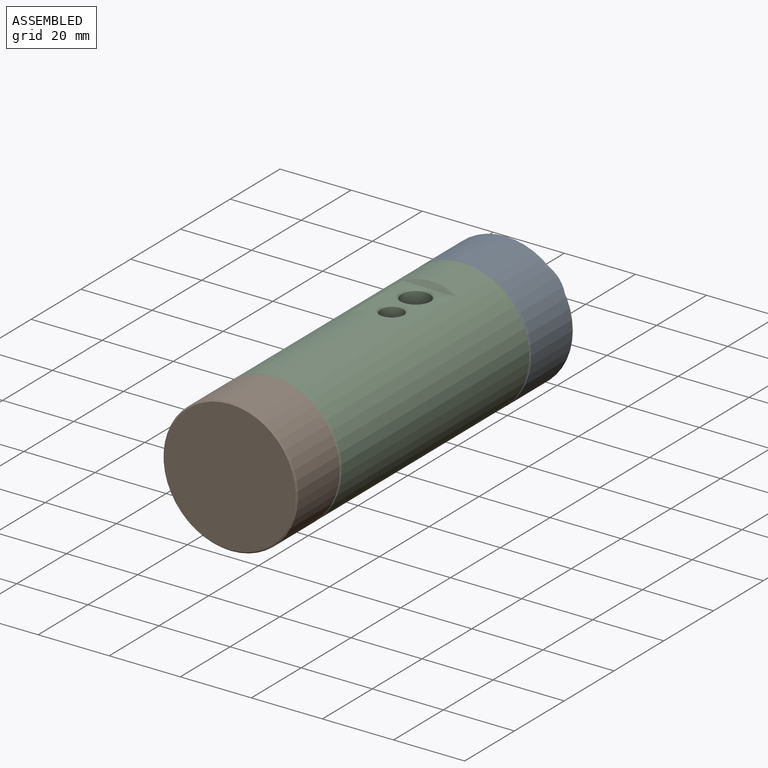
[diagram: assembled view]
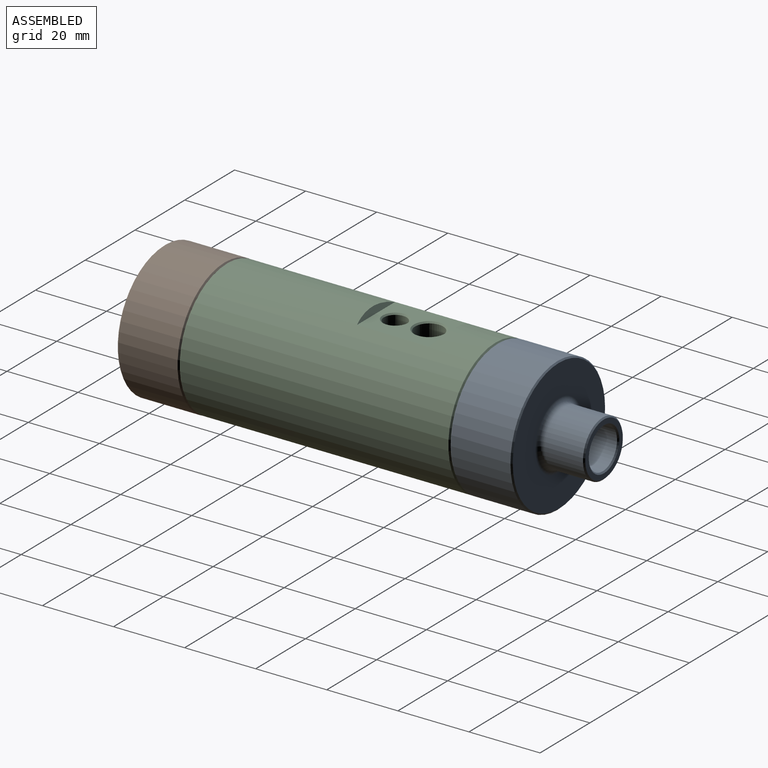
[diagram: assembled view, second angle]
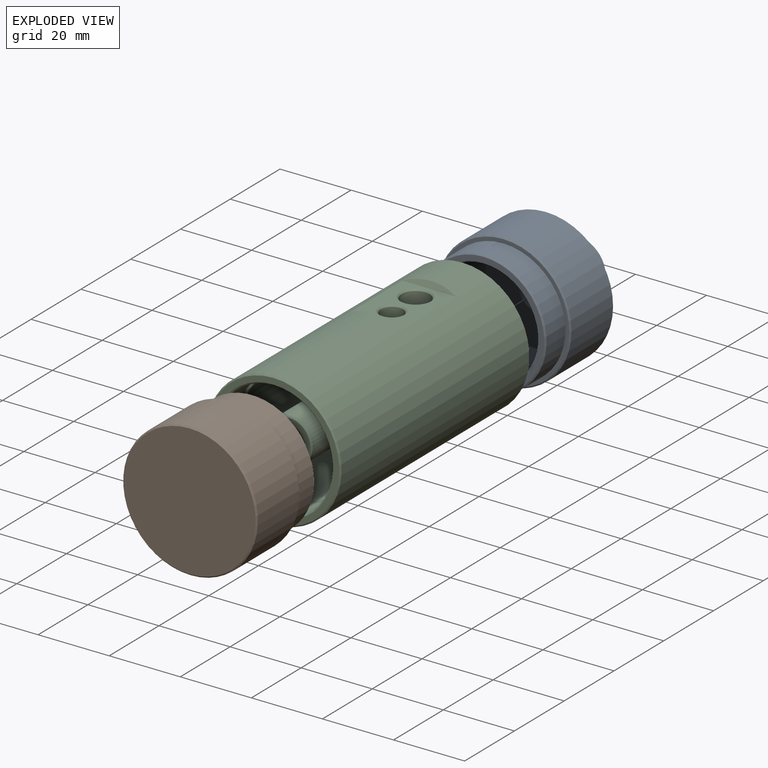
[diagram: exploded view]
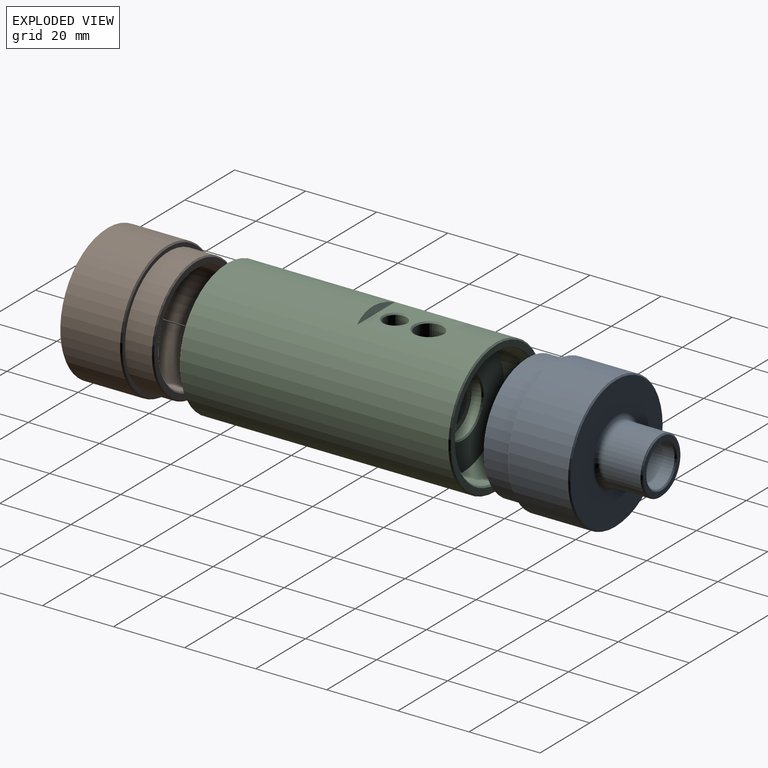
[diagram: exploded view, second angle]
ASSEMBLY  parts=3 mates=2
PART A: 17 faces, bbox 37.8x38.1x37.8 mm
  f0: cylinder r=18.92mm len=37.85mm, axis (0,1,0), area 1985.6mm2, adj f9,f14
  f1: plane 34.16x34.16mm, normal (0,-1,0), area 165.6mm2, adj f8,f15
  f2: plane 37.08x37.08mm, normal (0,1,0), area 795.1mm2, adj f9,f16
  f3: cylinder r=15.08mm len=30.16mm, axis (0,-1,0), area 2069.9mm2, adj f4,f8
  f4: plane 30.16x30.16mm, normal (0,-1,0), area 610.5mm2, adj f3,f7
  f5: cylinder r=7.94mm len=15.88mm, axis (0,-1,0), area 535.2mm2, adj f11,f16
  f6: plane 15.11x15.11mm, normal (0,1,0), area 61.1mm2, adj f10,f11
  f7: cylinder r=5.75mm len=15.49mm, axis (0,1,0), area 560.2mm2, adj f4,f10
  f8: cone r=15.08mm half-angle=45deg, axis (0,-1,0), area 51.7mm2, adj f1,f3
  f9: cone r=18.92mm half-angle=45deg, axis (0,-1,0), area 63.4mm2, adj f0,f2
  f10: cone r=5.75mm half-angle=45deg, axis (0,1,0), area 20.1mm2, adj f6,f7
  f11: cone r=7.56mm half-angle=45deg, axis (0,-1,0), area 26.2mm2, adj f5,f6
  f12: cylinder r=17.46mm len=34.93mm, axis (0,-1,0), area 829.1mm2, adj f13,f15
  f13: plane 37.08x37.08mm, normal (0,-1,0), area 122.1mm2, adj f12,f14
  f14: cone r=18.54mm half-angle=45deg, axis (0,1,0), area 63.4mm2, adj f0,f13
  f15: cone r=17.08mm half-angle=45deg, axis (0,1,0), area 58.5mm2, adj f1,f12
  f16: torus R=9.53mm, axis (0,-1,0), area 133.4mm2, adj f2,f5
PART B: 11 faces, bbox 37.8x25.4x37.8 mm
  f0: plane 34.16x34.16mm, normal (0,1,0), area 165.6mm2, adj f9,f10
  f1: cylinder r=15.08mm len=30.16mm, axis (0,1,0), area 2069.9mm2, adj f2,f10
  f2: plane 30.16x30.16mm, normal (0,1,0), area 714.5mm2, adj f1
  f3: cylinder r=17.46mm len=34.93mm, axis (0,1,0), area 829.1mm2, adj f4,f9
  f4: plane 37.08x37.08mm, normal (0,1,0), area 122.1mm2, adj f3,f8
  f5: plane 37.08x37.08mm, normal (0,-1,0), area 1080.1mm2, adj f7
  f6: cylinder r=18.92mm len=37.85mm, axis (0,1,0), area 1985.6mm2, adj f7,f8
  f7: cone r=18.54mm half-angle=45deg, axis (0,1,0), area 63.4mm2, adj f5,f6
  f8: cone r=18.92mm half-angle=45deg, axis (0,-1,0), area 63.4mm2, adj f4,f6
  f9: cone r=17.46mm half-angle=45deg, axis (0,-1,0), area 58.5mm2, adj f0,f3
  f10: cone r=15.46mm half-angle=45deg, axis (0,1,0), area 51.7mm2, adj f0,f1
PART C: 46 faces, bbox 37.8x76.2x37.8 mm
  f0: cylinder r=3.84mm len=34.85mm, axis (0,-1,0), area 773.8mm2, adj f1,f2,f27,f32,f33
  f1: cone r=0mm half-angle=59deg, axis (0,0,1), area 16.1mm2, adj f0,f2,f27
  f2: cylinder r=3.97mm len=18.67mm, axis (0,0,1), area 418.4mm2, adj f0,f1,f28,f29,f30,f31,f38
  f3: cylinder r=6.35mm len=56.74mm, axis (0,-1,0), area 1821.1mm2, adj f5,f6,f15,f20,f40
  f4: cylinder r=18.92mm len=75.44mm, axis (0,1,0), area 8631.9mm2, adj f16,f17,f18,f41,f42
  f5: plane 22.23x8.4mm, normal (-1,0,0), area 186.6mm2, adj f3,f8,f15,f19,f20,f22
  f6: plane 22.23x8.4mm, normal (1,0,0), area 186.6mm2, adj f3,f8,f15,f19,f20,f21
  f7: cylinder r=15.88mm len=53.62mm, axis (0,-1,0), area 4749.6mm2, adj f8,f13,f15,f21,f22
  f8: plane 31.75x27.45mm, normal (0,-1,0), area 466.5mm2, adj f5,f6,f7,f19,f21,f22
  f9: plane 37.08x37.08mm, normal (0,-1,0), area 188mm2, adj f42,f43
  f10: plane 37.08x37.08mm, normal (0,1,0), area 187.8mm2, adj f35,f41
  f11: cylinder r=16.47mm len=32.94mm, axis (0,1,0), area 946.4mm2, adj f12,f35
  f12: plane 32.94x32.94mm, normal (0,1,0), area 635mm2, adj f11,f36
  f13: cone r=0mm half-angle=59deg, axis (0,-1,0), area 70.6mm2, adj f7,f14
  f14: cylinder r=16.47mm len=32.94mm, axis (0,-1,0), area 946.3mm2, adj f13,f43
  f15: plane 23.81x15.88mm, normal (0,-1,0), area 121mm2, adj f3,f5,f6,f7,f21,f22,f44
  f16: plane 15.17x1.59mm, normal (0,0.87,0.5), area 18.7mm2, adj f4,f17
  f17: plane 20.39x15.17mm, normal (0,0,1), area 210.3mm2, adj f4,f16,f18,f37,f38
  f18: plane 15.17x1.59mm, normal (0,-0.87,0.5), area 18.7mm2, adj f4,f17
  f19: cylinder r=7.94mm len=15.88mm, axis (0,1,0), area 139.7mm2, adj f5,f6,f8,f20,f36
  f20: plane 14.29x12.7mm, normal (0,1,0), area 152mm2, adj f3,f5,f6,f19
  f21: cylinder r=3.17mm len=22.23mm, axis (0,-1,0), area 170.7mm2, adj f6,f7,f8,f15
  f22: cylinder r=3.17mm len=22.23mm, axis (0,-1,0), area 170.7mm2, adj f5,f7,f8,f15
  f23: cylinder r=3.17mm len=9.14mm, axis (0,0,1), area 137.4mm2, adj f24,f25,f37,f44
  f24: cylinder r=3.17mm len=2.98mm, axis (0,0,1), area 4.9mm2, adj f23,f25,f44
  f25: plane 6.35x6.16mm, normal (0,0,1), area 24.9mm2, adj f23,f24,f44,f45
  f26: plane 11.94x11.94mm, normal (0,-1,0), area 52.5mm2, adj f39,f40
  f27: cone r=0mm half-angle=59deg, axis (0,-1,0), area 6.5mm2, adj f0,f1
  f28: cylinder r=3.84mm len=2.43mm, axis (0,-1,0), area 0.9mm2, adj f2,f29
  f29: cone r=0mm half-angle=59deg, axis (0,-1,0), area 0.5mm2, adj f2,f28
  f30: cone r=0mm half-angle=59deg, axis (0,-1,0), area 0.5mm2, adj f2,f31
  f31: cylinder r=3.84mm len=2.43mm, axis (0,-1,0), area 0.9mm2, adj f2,f30
  f32: cone r=0mm half-angle=59deg, axis (0,0,1), area 0.8mm2, adj f0
  f33: cone r=0mm half-angle=59deg, axis (0,-1,0), area 3.8mm2, adj f0,f34
  f34: cylinder r=3.97mm len=17.08mm, axis (0,-1,0), area 426mm2, adj f33,f39
  f35: cone r=16.47mm half-angle=45deg, axis (0,1,0), area 56.4mm2, adj f10,f11
  f36: cone r=7.94mm half-angle=45deg, axis (0,1,0), area 27.5mm2, adj f12,f19
  f37: cone r=3.17mm half-angle=45deg, axis (0,0,1), area 11.4mm2, adj f17,f23
  f38: cone r=3.97mm half-angle=45deg, axis (0,0,1), area 14.1mm2, adj f2,f17
  f39: cone r=3.97mm half-angle=45deg, axis (0,-1,0), area 14.1mm2, adj f26,f34
  f40: cone r=5.97mm half-angle=45deg, axis (0,1,0), area 20.9mm2, adj f3,f26
  f41: cone r=18.92mm half-angle=45deg, axis (0,-1,0), area 63.4mm2, adj f4,f10
  f42: cone r=18.54mm half-angle=45deg, axis (0,1,0), area 63.4mm2, adj f4,f9
  f43: cone r=16.47mm half-angle=45deg, axis (0,-1,0), area 56.4mm2, adj f9,f14
  f44: cylinder r=3.17mm len=6.35mm, axis (0,-1,0), area 93.2mm2, adj f15,f23,f24,f25,f45
  f45: plane 2.17x0.19mm, normal (0,-1,0), area 0.3mm2, adj f25,f44
PLACE A t=(52.64,-6.05,54.87)mm
PLACE B t=(52.64,60.62,54.87)mm
PLACE C t=(52.64,14.58,54.87)mm
MATE fastened C.f0 <-> A.f3  axis (0,1,0) through (52.64,52.68,54.87)mm
MATE fastened C.f19 <-> B.f6  axis (0,-1,0) through (52.64,-23.52,54.87)mm
